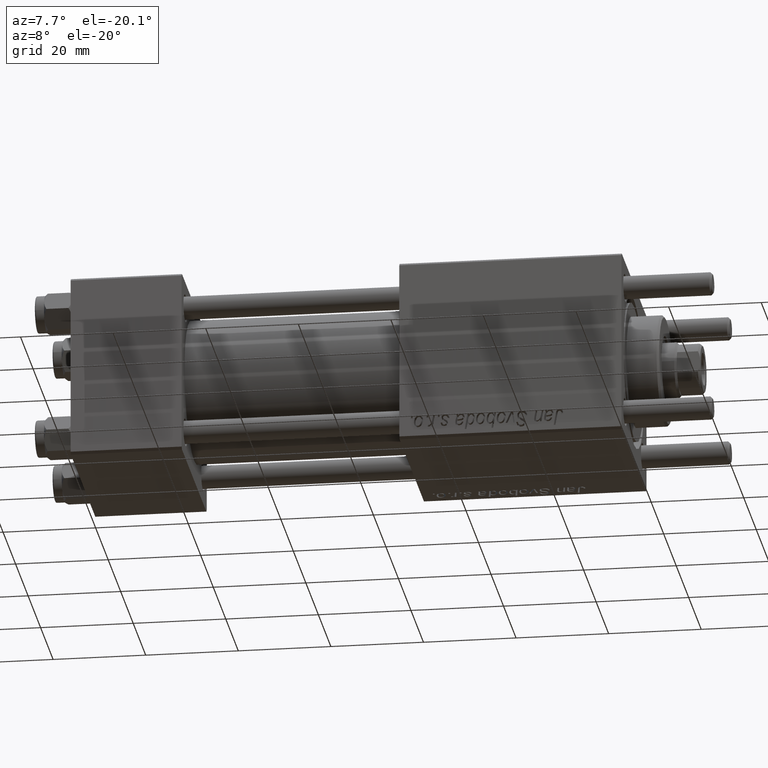
[diagram: clean part render]
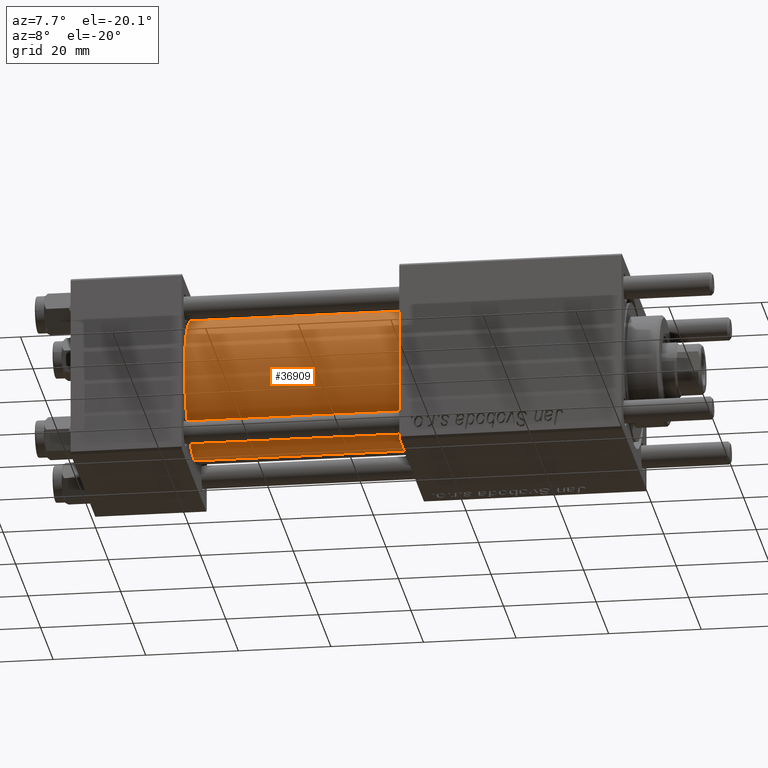
[diagram: same view with one face highlighted and labeled with its STEP entity id]
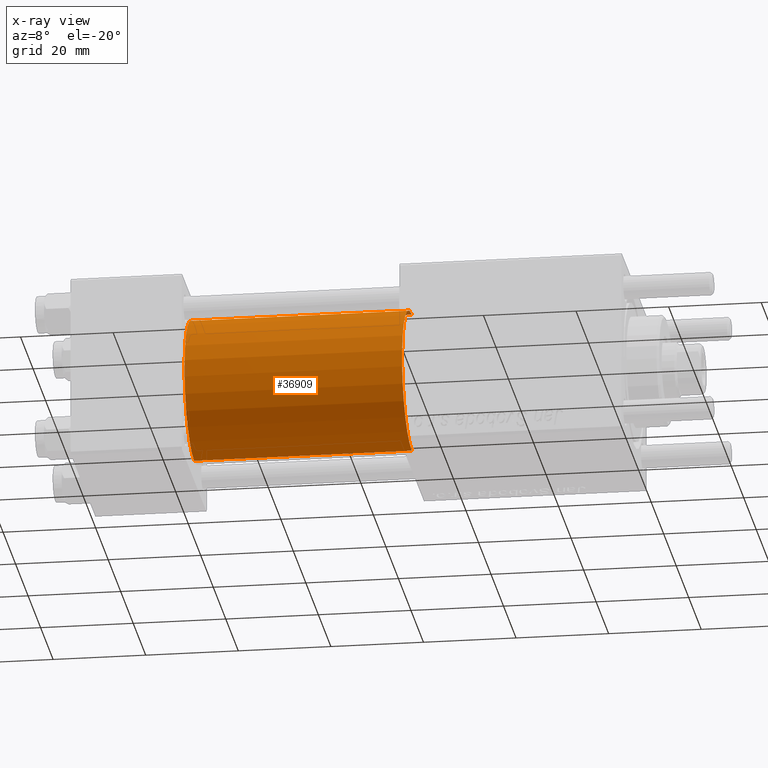
[diagram: x-ray of the same camera — body ghosted, the highlighted face saturated]
A machine part, auxiliary view. The second image highlights one B-rep face of the part: STEP entity #36909.
The next image is the same camera in x-ray: the body ghosted, the highlighted face saturated — about 0% of this face is hidden behind the body in this view.
In plain terms, the highlighted cylindrical surface (partial cylindrical patch) has radius 15.5 mm, axis along (-1, -0, -0).
Its self-contained STEP definition (entity closure, byte-faithful):
#1543 = DIRECTION ( 'NONE',  ( 0.000000000000000000, 0.000000000000000000, 1.000000000000000000 ) ) ;
#1586 = EDGE_LOOP ( 'NONE', ( #20597, #37040, #33330, #6320 ) ) ;
#1832 = CYLINDRICAL_SURFACE ( 'NONE', #20774, 15.50000000000000000 ) ;
#2569 = VERTEX_POINT ( 'NONE', #40363 ) ;
#5093 = DIRECTION ( 'NONE',  ( -1.000000000000000000, -0.000000000000000000, -0.000000000000000000 ) ) ;
#5863 = CARTESIAN_POINT ( 'NONE',  ( 71.00000000000001421, -2.602085213965210642E-15, 0.000000000000000000 ) ) ;
#6320 = ORIENTED_EDGE ( 'NONE', *, *, #55240, .T. ) ;
#9286 = CIRCLE ( 'NONE', #40384, 15.50000000000000000 ) ;
#9619 = FACE_OUTER_BOUND ( 'NONE', #1586, .T. ) ;
#11408 = VECTOR ( 'NONE', #5093, 1000.000000000000000 ) ;
#11409 = DIRECTION ( 'NONE',  ( 0.000000000000000000, 0.000000000000000000, -1.000000000000000000 ) ) ;
#14765 = CARTESIAN_POINT ( 'NONE',  ( 24.00000000000000000, -2.602085213965210642E-15, 0.000000000000000000 ) ) ;
#16033 = VERTEX_POINT ( 'NONE', #47115 ) ;
#16410 = DIRECTION ( 'NONE',  ( -1.000000000000000000, -0.000000000000000000, -0.000000000000000000 ) ) ;
#20597 = ORIENTED_EDGE ( 'NONE', *, *, #41576, .F. ) ;
#20774 = AXIS2_PLACEMENT_3D ( 'NONE', #5863, #48917, #23653 ) ;
#22323 = CARTESIAN_POINT ( 'NONE',  ( 71.00000000000001421, -2.602085213965210642E-15, 15.50000000000000000 ) ) ;
#23167 = LINE ( 'NONE', #22323, #11408 ) ;
#23653 = DIRECTION ( 'NONE',  ( 0.000000000000000000, 0.000000000000000000, 1.000000000000000000 ) ) ;
#23834 = EDGE_CURVE ( 'NONE', #16033, #24407, #23167, .T. ) ;
#24407 = VERTEX_POINT ( 'NONE', #55478 ) ;
#27217 = CIRCLE ( 'NONE', #38217, 15.50000000000000000 ) ;
#28227 = VECTOR ( 'NONE', #16410, 1000.000000000000000 ) ;
#31159 = CARTESIAN_POINT ( 'NONE',  ( 71.00000000000001421, -7.038826752868131828E-16, -15.50000000000000000 ) ) ;
#32313 = EDGE_CURVE ( 'NONE', #16033, #53288, #27217, .T. ) ;
#32555 = DIRECTION ( 'NONE',  ( 1.000000000000000000, 0.000000000000000000, 0.000000000000000000 ) ) ;
#33330 = ORIENTED_EDGE ( 'NONE', *, *, #23834, .T. ) ;
#36909 = ADVANCED_FACE ( 'NONE', ( #9619 ), #1832, .T. ) ;
#37040 = ORIENTED_EDGE ( 'NONE', *, *, #32313, .F. ) ;
#38217 = AXIS2_PLACEMENT_3D ( 'NONE', #49355, #55004, #11409 ) ;
#40363 = CARTESIAN_POINT ( 'NONE',  ( 24.00000000000000000, -7.038826752868131828E-16, -15.50000000000000000 ) ) ;
#40384 = AXIS2_PLACEMENT_3D ( 'NONE', #14765, #32555, #1543 ) ;
#41576 = EDGE_CURVE ( 'NONE', #53288, #2569, #51704, .T. ) ;
#43073 = CARTESIAN_POINT ( 'NONE',  ( 71.00000000000001421, -7.038826752868131828E-16, -15.50000000000000000 ) ) ;
#47115 = CARTESIAN_POINT ( 'NONE',  ( 71.00000000000001421, -2.602085213965210642E-15, 15.50000000000000000 ) ) ;
#48917 = DIRECTION ( 'NONE',  ( -1.000000000000000000, -0.000000000000000000, -0.000000000000000000 ) ) ;
#49355 = CARTESIAN_POINT ( 'NONE',  ( 71.00000000000001421, -2.602085213965210642E-15, 0.000000000000000000 ) ) ;
#51704 = LINE ( 'NONE', #43073, #28227 ) ;
#53288 = VERTEX_POINT ( 'NONE', #31159 ) ;
#55004 = DIRECTION ( 'NONE',  ( 1.000000000000000000, 0.000000000000000000, 0.000000000000000000 ) ) ;
#55240 = EDGE_CURVE ( 'NONE', #24407, #2569, #9286, .T. ) ;
#55478 = CARTESIAN_POINT ( 'NONE',  ( 24.00000000000000000, -2.602085213965210642E-15, 15.50000000000000000 ) ) ;